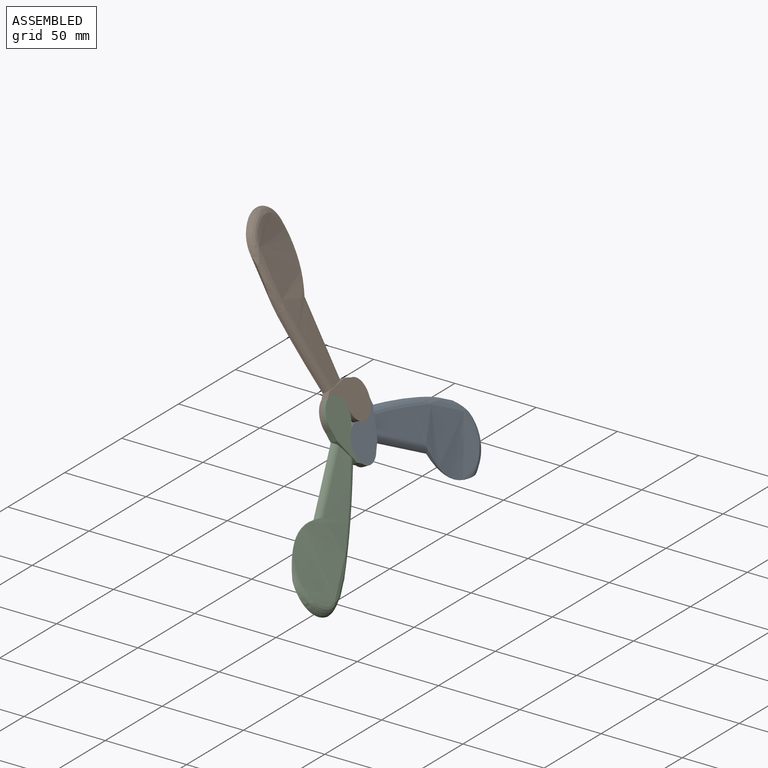
[diagram: assembled view]
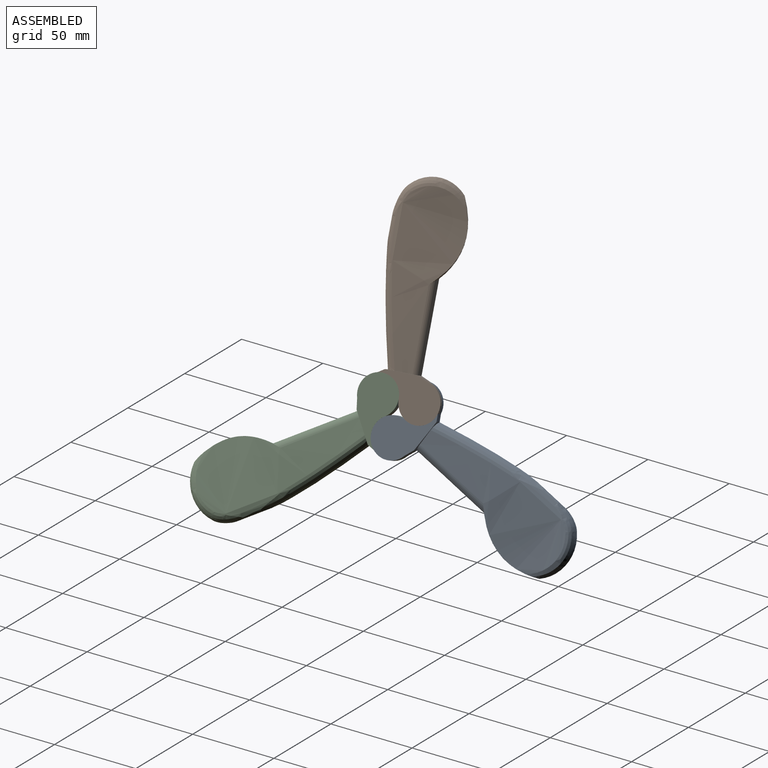
[diagram: assembled view, second angle]
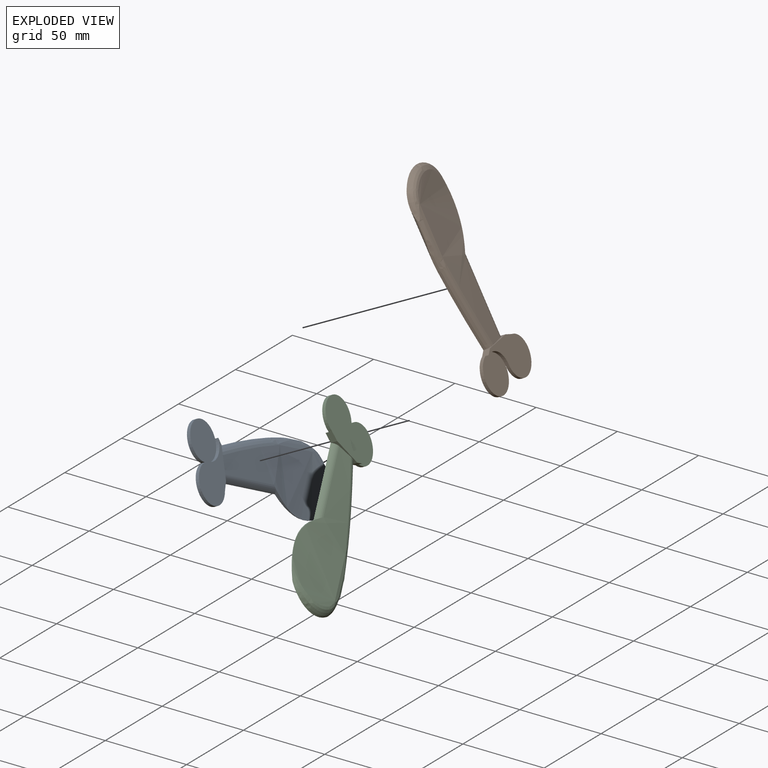
[diagram: exploded view]
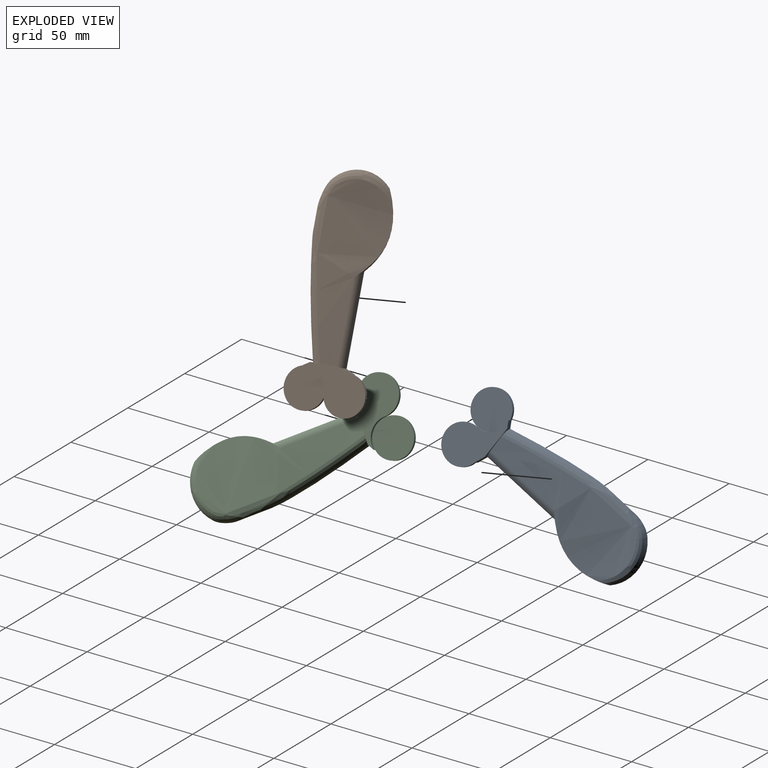
[diagram: exploded view, second angle]
ASSEMBLY  parts=3 mates=2
PART A: 22 faces, bbox 50.8x129.8x8.9 mm
  f0: cylinder r=11.5mm len=23mm, axis (0,0,-1), area 103.5mm2, adj f2,f13,f19,f20
  f1: extruded ~47.6x14.51mm, area 69mm2, adj f2,f5,f9,f12
  f2: plane 129.79x49.51mm, normal (0,0,-1), area 3501.8mm2, adj f0,f1,f3,f8,f9,f11,f12,f13
  f3: cylinder r=2.22mm len=38.16mm, axis (0,1,0), area 27.3mm2, adj f2,f6,f7,f10
  f4: extruded ~31.38x5.38mm, area 130.5mm2, adj f5,f6,f7,f10
  f5: extruded ~95.31x36.06mm, area 2207.4mm2, adj f1,f4,f7,f8,f9,f10,f11,f12
  f6: cylinder r=1mm len=29.84mm, axis (0,1,0), area 21.8mm2, adj f3,f4,f7,f10
  f7: bspline ~19.99x6.72mm, area 74.7mm2, adj f3,f4,f5,f6,f8
  f8: bspline ~59.92x17.5mm, area 333.8mm2, adj f2,f5,f7,f16
  f9: cylinder r=5mm len=49.84mm, axis (0,1,0), area 234mm2, adj f1,f2,f5,f16
  f10: bspline ~12.3x6.53mm, area 40.4mm2, adj f3,f4,f5,f6,f11
  f11: bspline ~13.03x12.4mm, area 42.3mm2, adj f2,f5,f10,f12
  f12: bspline ~37.3x14.32mm, area 194.6mm2, adj f1,f2,f5,f11
  f13: plane 4x3.58mm, normal (-0.53,0.85,0), area 16.8mm2, adj f0,f2,f16,f17,f18
  f14: cylinder r=11.5mm len=23mm, axis (0,0,-1), area 103.5mm2, adj f15,f17,f18,f21
  f15: plane 5.58x4mm, normal (0.37,0.93,0), area 24mm2, adj f2,f14,f16,f17,f20
  f16: plane 19.04x4.35mm, normal (0,1,0), area 23.8mm2, adj f5,f8,f9,f13,f15,f17
  f17: plane 36.92x24.95mm, normal (0,0,1), area 516.9mm2, adj f13,f14,f15,f16,f18
  f18: cylinder r=11.5mm len=13.92mm, axis (0,0,1), area 41mm2, adj f13,f14,f17,f19
  f19: plane 23x23mm, normal (0,0,1), area 415.5mm2, adj f0,f18
  f20: cylinder r=11.5mm len=13.92mm, axis (0,0,-1), area 41mm2, adj f0,f2,f15,f21
  f21: plane 23x23mm, normal (0,0,-1), area 415.5mm2, adj f14,f20
PART B: same geometry as A
PART C: same geometry as A
PLACE A rot(axis=(-0.33,0.91,-0.26),67.7deg) t=(8.25,-32.28,-93.62)mm
PLACE B rot(axis=(0.41,0.49,0.77),114.3deg) t=(5.15,-66.25,-74.42)mm
PLACE C rot(axis=(-0.55,0.1,-0.83),146.5deg) t=(21.75,-65.24,-109.86)mm
MATE revolute A.f14 <-> C.f0  axis (-0.89,-0.16,-0.42) through (19.03,-53.3,-103.82)mm
MATE revolute A.f0 <-> B.f14  axis (0.89,0.16,0.42) through (8.74,-43.44,-85.77)mm
